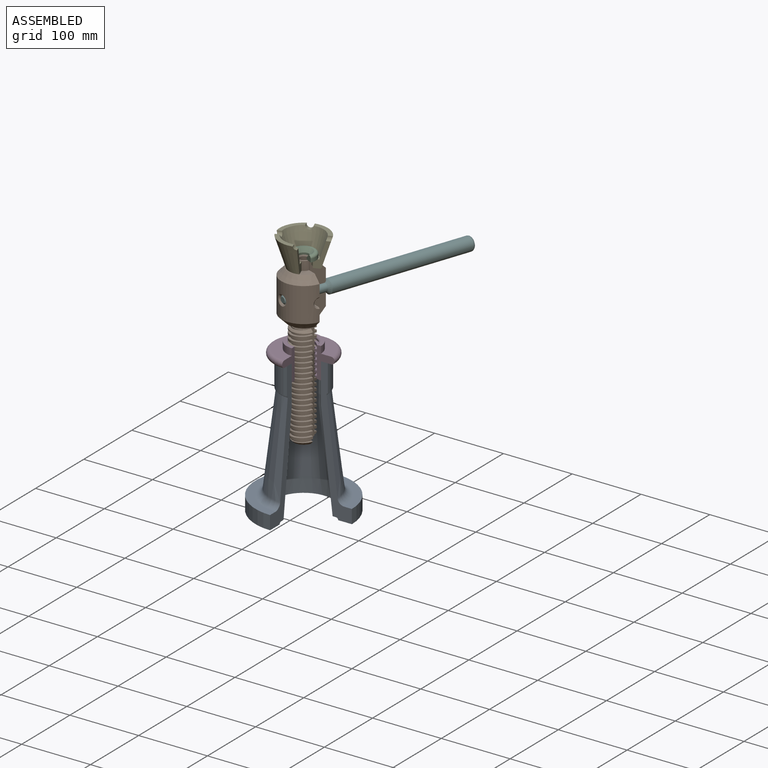
[diagram: assembled view]
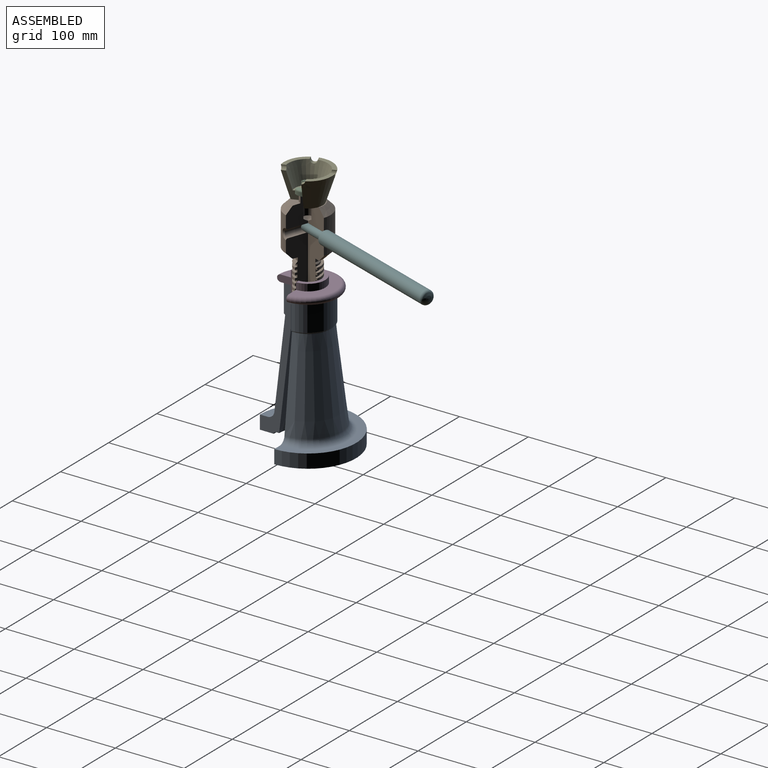
[diagram: assembled view, second angle]
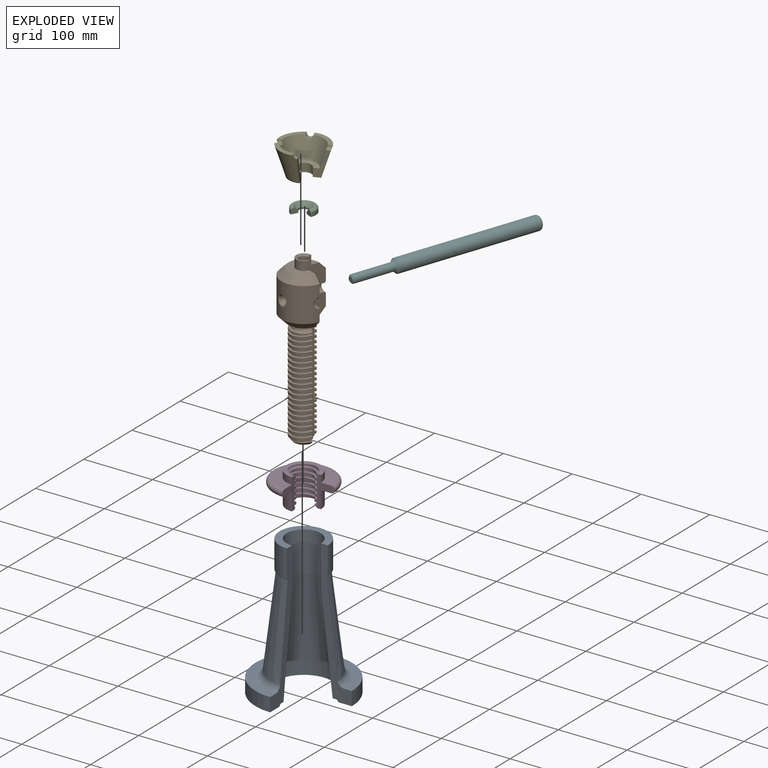
[diagram: exploded view]
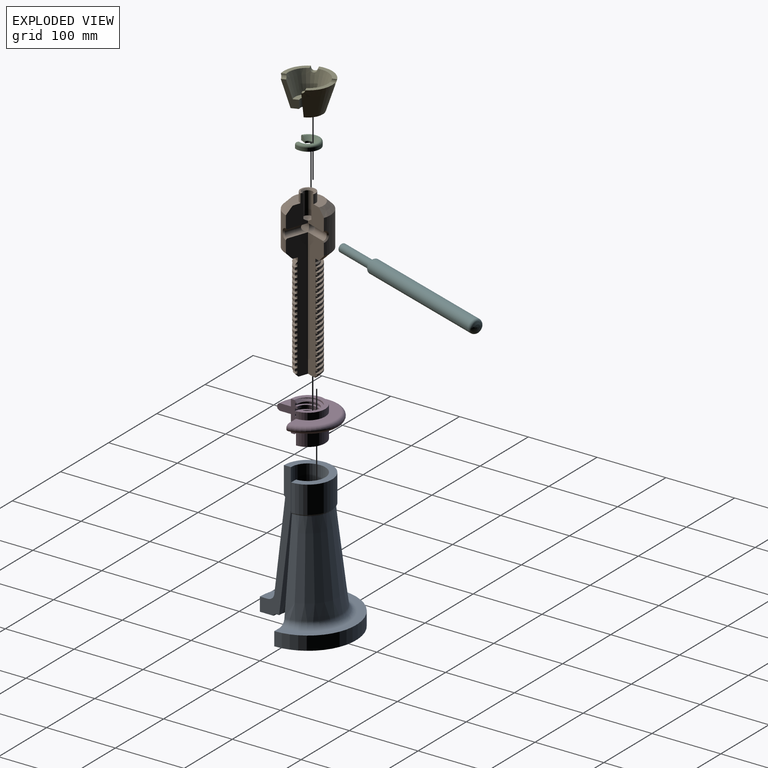
[diagram: exploded view, second angle]
ASSEMBLY  parts=6 mates=5
PART A: 14 faces, bbox 140x140x202 mm
  f0: plane 140x140mm, normal (0,0,-1), area 5654.9mm2, adj f6,f10,f12,f13
  f1: cylinder r=35mm len=70mm, axis (0,0,1), area 6597.3mm2, adj f2,f9,f12,f13
  f2: plane 70x70mm, normal (0,0,1), area 1413.7mm2, adj f1,f3,f12,f13
  f3: cylinder r=25mm len=57.3mm, axis (0,0,1), area 6750.8mm2, adj f2,f4,f12,f13
  f4: cone r=25mm half-angle=6.8deg, axis (0,0,-1), area 22516.7mm2, adj f3,f5,f12,f13
  f5: plane 94x94mm, normal (0,0,-1), area 1055.7mm2, adj f4,f10,f12,f13
  f6: cylinder r=70mm len=140mm, axis (0,0,1), area 6597.3mm2, adj f0,f7,f12,f13
  f7: plane 140x140mm, normal (0,0,1), area 3378.4mm2, adj f6,f11,f12,f13
  f8: cone r=50mm half-angle=6.8deg, axis (0,0,-1), area 25550.1mm2, adj f9,f11,f12,f13
  f9: torus R=35.25mm, axis (0,0,1), area 498.6mm2, adj f1,f8,f12,f13
  f10: torus R=47mm, axis (0,0,1), area 1086.1mm2, adj f0,f5,f12,f13
  f11: torus R=58.87mm, axis (0,0,-1), area 3612.2mm2, adj f7,f8,f12,f13
  f12: plane 202x45mm, normal (1,0,0), area 2385.3mm2, adj f0,f1,f2,f3,f4,f5,f6,f7
  f13: plane 202x45mm, normal (0,-1,0), area 2385.3mm2, adj f0,f1,f2,f3,f4,f5,f6,f7
PART B: 114 faces, bbox 65x65x240 mm
  f0: cylinder r=6mm len=30.84mm, axis (0,-1,0), area 509.3mm2, adj f85,f92,f110,f113
  f1: cylinder r=19mm len=38mm, axis (0,0,-1), area 279mm2, adj f42,f83,f98,f112,f113
  f2: cylinder r=19mm len=38mm, axis (0,0,-1), area 313.4mm2, adj f41,f82,f112,f113
  f3: cylinder r=19mm len=38mm, axis (0,0,-1), area 313.4mm2, adj f40,f81,f112,f113
  f4: cylinder r=19mm len=38mm, axis (0,0,-1), area 313.4mm2, adj f39,f80,f112,f113
  f5: cylinder r=19mm len=38mm, axis (0,0,-1), area 313.4mm2, adj f38,f79,f112,f113
  f6: cylinder r=19mm len=38mm, axis (0,0,-1), area 313.4mm2, adj f37,f78,f112,f113
  f7: cylinder r=19mm len=38mm, axis (0,0,-1), area 313.4mm2, adj f36,f77,f112,f113
  f8: cylinder r=19mm len=38mm, axis (0,0,-1), area 313.4mm2, adj f35,f76,f112,f113
  f9: cylinder r=19mm len=38mm, axis (0,0,-1), area 313.4mm2, adj f34,f75,f112,f113
  f10: cylinder r=19mm len=38mm, axis (0,0,-1), area 313.4mm2, adj f33,f74,f112,f113
  f11: cylinder r=19mm len=38mm, axis (0,0,-1), area 313.4mm2, adj f32,f73,f112,f113
  f12: cylinder r=19mm len=38mm, axis (0,0,-1), area 313.4mm2, adj f31,f72,f112,f113
  f13: cylinder r=19mm len=38mm, axis (0,0,-1), area 313.4mm2, adj f30,f71,f112,f113
  f14: cylinder r=19mm len=38mm, axis (0,0,-1), area 313.4mm2, adj f29,f70,f112,f113
  f15: cylinder r=19mm len=38mm, axis (0,0,-1), area 313.4mm2, adj f28,f69,f112,f113
  f16: cylinder r=19mm len=38mm, axis (0,0,-1), area 313.4mm2, adj f27,f68,f112,f113
  f17: cylinder r=19mm len=38mm, axis (0,0,-1), area 313.4mm2, adj f26,f67,f112,f113
  f18: cylinder r=19mm len=38mm, axis (0,0,-1), area 313.4mm2, adj f25,f66,f112,f113
  f19: cylinder r=19mm len=38mm, axis (0,0,-1), area 313.4mm2, adj f24,f65,f112,f113
  f20: cylinder r=19mm len=38mm, axis (0,0,-1), area 313.4mm2, adj f23,f64,f112,f113
  f21: cone r=14mm half-angle=45deg, axis (0,0,1), area 258.6mm2, adj f63,f84,f95,f112,f113
  f22: bspline ~43.88x38mm, area 284.6mm2, adj f43,f96,f97,f112,f113
  f23: bspline ~43.88x38mm, area 285.1mm2, adj f20,f44,f112,f113
  f24: bspline ~43.88x38mm, area 285.1mm2, adj f19,f45,f112,f113
  f25: bspline ~43.88x38mm, area 285.1mm2, adj f18,f46,f112,f113
  f26: bspline ~43.88x38mm, area 285.1mm2, adj f17,f47,f112,f113
  f27: bspline ~43.88x38mm, area 285.1mm2, adj f16,f48,f112,f113
  f28: bspline ~43.88x38mm, area 285.1mm2, adj f15,f49,f112,f113
  f29: bspline ~43.88x38mm, area 285.1mm2, adj f14,f50,f112,f113
  f30: bspline ~43.88x38mm, area 285.1mm2, adj f13,f51,f112,f113
  f31: bspline ~43.88x38mm, area 285.1mm2, adj f12,f52,f112,f113
  f32: bspline ~43.88x38mm, area 285.1mm2, adj f11,f53,f112,f113
  f33: bspline ~43.88x38mm, area 285.1mm2, adj f10,f54,f112,f113
  f34: bspline ~43.88x38mm, area 285.1mm2, adj f9,f55,f112,f113
  f35: bspline ~43.88x38mm, area 285.1mm2, adj f8,f56,f112,f113
  f36: bspline ~43.88x38mm, area 285.1mm2, adj f7,f57,f112,f113
  f37: bspline ~43.88x38mm, area 285.1mm2, adj f6,f58,f112,f113
  f38: bspline ~43.88x38mm, area 285.1mm2, adj f5,f59,f112,f113
  f39: bspline ~43.88x38mm, area 285.1mm2, adj f4,f60,f112,f113
  f40: bspline ~43.88x38mm, area 285.1mm2, adj f3,f61,f112,f113
  f41: bspline ~43.88x38mm, area 285.1mm2, adj f2,f62,f112,f113
  f42: bspline ~43.88x38mm, area 252.4mm2, adj f1,f63,f98,f112,f113
  f43: cylinder r=15.5mm len=31mm, axis (0,0,-1), area 255.6mm2, adj f22,f64,f112,f113
  f44: cylinder r=15.5mm len=31mm, axis (0,0,-1), area 255.6mm2, adj f23,f65,f112,f113
  f45: cylinder r=15.5mm len=31mm, axis (0,0,-1), area 255.6mm2, adj f24,f66,f112,f113
  f46: cylinder r=15.5mm len=31mm, axis (0,0,-1), area 255.6mm2, adj f25,f67,f112,f113
  f47: cylinder r=15.5mm len=31mm, axis (0,0,-1), area 255.6mm2, adj f26,f68,f112,f113
  f48: cylinder r=15.5mm len=31mm, axis (0,0,-1), area 255.6mm2, adj f27,f69,f112,f113
  f49: cylinder r=15.5mm len=31mm, axis (0,0,-1), area 255.6mm2, adj f28,f70,f112,f113
  f50: cylinder r=15.5mm len=31mm, axis (0,0,-1), area 255.6mm2, adj f29,f71,f112,f113
  f51: cylinder r=15.5mm len=31mm, axis (0,0,-1), area 255.6mm2, adj f30,f72,f112,f113
  f52: cylinder r=15.5mm len=31mm, axis (0,0,-1), area 255.6mm2, adj f31,f73,f112,f113
  f53: cylinder r=15.5mm len=31mm, axis (0,0,-1), area 255.6mm2, adj f32,f74,f112,f113
  f54: cylinder r=15.5mm len=31mm, axis (0,0,-1), area 255.6mm2, adj f33,f75,f112,f113
  f55: cylinder r=15.5mm len=31mm, axis (0,0,-1), area 255.6mm2, adj f34,f76,f112,f113
  f56: cylinder r=15.5mm len=31mm, axis (0,0,-1), area 255.6mm2, adj f35,f77,f112,f113
  f57: cylinder r=15.5mm len=31mm, axis (0,0,-1), area 255.6mm2, adj f36,f78,f112,f113
  f58: cylinder r=15.5mm len=31mm, axis (0,0,-1), area 255.6mm2, adj f37,f79,f112,f113
  f59: cylinder r=15.5mm len=31mm, axis (0,0,-1), area 255.6mm2, adj f38,f80,f112,f113
  f60: cylinder r=15.5mm len=31mm, axis (0,0,-1), area 255.6mm2, adj f39,f81,f112,f113
  f61: cylinder r=15.5mm len=31mm, axis (0,0,-1), area 255.6mm2, adj f40,f82,f112,f113
  f62: cylinder r=15.5mm len=31mm, axis (0,0,-1), area 255.6mm2, adj f41,f83,f112,f113
  f63: cylinder r=15.5mm len=31mm, axis (0,0,-1), area 227.6mm2, adj f21,f42,f84,f112,f113
  f64: bspline ~43.88x38mm, area 285.1mm2, adj f20,f43,f112,f113
  f65: bspline ~43.88x38mm, area 285.1mm2, adj f19,f44,f112,f113
  f66: bspline ~43.88x38mm, area 285.1mm2, adj f18,f45,f112,f113
  f67: bspline ~43.88x38mm, area 285.1mm2, adj f17,f46,f112,f113
  f68: bspline ~43.88x38mm, area 285.1mm2, adj f16,f47,f112,f113
  f69: bspline ~43.88x38mm, area 285.1mm2, adj f15,f48,f112,f113
  f70: bspline ~43.88x38mm, area 285.1mm2, adj f14,f49,f112,f113
  f71: bspline ~43.88x38mm, area 285.1mm2, adj f13,f50,f112,f113
  f72: bspline ~43.88x38mm, area 285.1mm2, adj f12,f51,f112,f113
  f73: bspline ~43.88x38mm, area 285.1mm2, adj f11,f52,f112,f113
  f74: bspline ~43.88x38mm, area 285.1mm2, adj f10,f53,f112,f113
  f75: bspline ~43.88x38mm, area 285.1mm2, adj f9,f54,f112,f113
  f76: bspline ~43.88x38mm, area 285.1mm2, adj f8,f55,f112,f113
  f77: bspline ~43.88x38mm, area 285.1mm2, adj f7,f56,f112,f113
  f78: bspline ~43.88x38mm, area 285.1mm2, adj f6,f57,f112,f113
  f79: bspline ~43.88x38mm, area 285.1mm2, adj f5,f58,f112,f113
  f80: bspline ~43.88x38mm, area 285.1mm2, adj f4,f59,f112,f113
  f81: bspline ~43.88x38mm, area 285.1mm2, adj f3,f60,f112,f113
  f82: bspline ~43.88x38mm, area 285.1mm2, adj f2,f61,f112,f113
  f83: bspline ~43.88x38mm, area 285.1mm2, adj f1,f62,f112,f113
  f84: bspline ~43.88x28.5mm, area 79.1mm2, adj f21,f63,f113
  f85: bspline ~15.32x8.07mm, area 54.4mm2, adj f0,f87,f110,f113
  f86: plane 45x45mm, normal (0,0,-1), area 662.7mm2, adj f94,f108,f112,f113
  f87: cylinder r=32.5mm len=65mm, axis (0,0,-1), area 7070.4mm2, adj f85,f102,f103,f104,f108,f109,f110,f111
  f88: plane 45x45mm, normal (0,0,1), area 907.7mm2, adj f89,f109,f110,f111
  f89: cylinder r=11mm len=22mm, axis (0,0,-1), area 673.9mm2, adj f88,f90,f110,f111
  f90: plane 22x22mm, normal (0,0,1), area 104.7mm2, adj f89,f107,f110,f111
  f91: cylinder r=6mm len=30.84mm, axis (0,-1,0), area 1018.7mm2, adj f92,f93,f103
  f92: cylinder r=6mm len=30.84mm, axis (1,0,0), area 1018.7mm2, adj f0,f91,f104
  f93: cylinder r=6mm len=30.84mm, axis (-1,0,0), area 509.3mm2, adj f91,f102,f111,f112
  f94: cylinder r=15mm len=30mm, axis (0,0,-1), area 353.4mm2, adj f86,f97,f112,f113
  f95: plane 28x28mm, normal (0,0,-1), area 461.8mm2, adj f21,f112,f113
  f96: cylinder r=19mm len=38mm, axis (0,0,-1), area 194.3mm2, adj f22,f97,f101,f112
  f97: cone r=19mm half-angle=45deg, axis (0,0,-1), area 230.2mm2, adj f22,f94,f96,f99,f100,f101,f112,f113
  f98: cone r=14mm half-angle=45deg, axis (0,0,1), area 46.3mm2, adj f1,f42,f112
  f99: bspline ~28.5x21.94mm, area 16.3mm2, adj f97,f100,f112
  f100: cylinder r=15.5mm len=31mm, axis (0,0,-1), area 158.5mm2, adj f97,f99,f101,f112
  f101: bspline ~43.88x38mm, area 174.1mm2, adj f96,f97,f100,f112
  f102: bspline ~15.32x9.13mm, area 54.4mm2, adj f87,f93,f111,f112
  f103: bspline ~16.13x15.3mm, area 108.8mm2, adj f87,f91
  f104: bspline ~16.13x15.3mm, area 108.8mm2, adj f87,f92
  f105: cone r=0mm half-angle=59deg, axis (0,0,1), area 125.2mm2, adj f106,f110,f111
  f106: cylinder r=6.75mm len=33mm, axis (0,0,1), area 1049.7mm2, adj f105,f107,f110,f111
  f107: cone r=6.75mm half-angle=45deg, axis (0,0,1), area 103.3mm2, adj f90,f106,f110,f111
  f108: cone r=22.5mm half-angle=45deg, axis (0,0,1), area 1832.7mm2, adj f86,f87,f112,f113
  f109: cone r=32.5mm half-angle=45deg, axis (0,0,-1), area 1832.7mm2, adj f87,f88,f110,f111
  f110: plane 42x32.5mm, normal (1,0,0), area 782.2mm2, adj f0,f85,f87,f88,f89,f90,f105,f106
  f111: plane 42x32.5mm, normal (0,-1,0), area 782.2mm2, adj f87,f88,f89,f90,f93,f102,f105,f106
  f112: plane 186x32.5mm, normal (0,-1,0), area 3577.2mm2, adj f1,f2,f3,f4,f5,f6,f7,f8
  f113: plane 186x32.5mm, normal (1,0,0), area 3576.4mm2, adj f0,f1,f2,f3,f4,f5,f6,f7
PART C: 8 faces, bbox 37.9x37.9x8 mm
  f0: plane 29x29mm, normal (0,0,1), area 127.2mm2, adj f1,f5,f6,f7
  f1: cone r=7.25mm half-angle=45deg, axis (0,0,1), area 345.5mm2, adj f0,f2,f6,f7
  f2: cylinder r=7.25mm len=14.5mm, axis (0,0,-1), area 94mm2, adj f1,f3,f6,f7
  f3: plane 35x35mm, normal (0,0,-1), area 597.7mm2, adj f2,f4,f6,f7
  f4: cylinder r=17.5mm len=35mm, axis (0,0,-1), area 412.3mm2, adj f3,f5,f6,f7
  f5: torus R=14.5mm, axis (0,0,-1), area 364.4mm2, adj f0,f4,f6,f7
  f6: plane 10.25x8mm, normal (1,0,0), area 66.3mm2, adj f0,f1,f2,f3,f4,f5
  f7: plane 10.25x8mm, normal (0,-1,0), area 66.3mm2, adj f0,f1,f2,f3,f4,f5
PART D: 40 faces, bbox 97.4x97.4x45.5 mm
  f0: cylinder r=15.5mm len=31mm, axis (0,0,1), area 181mm2, adj f6,f17,f24,f38,f39
  f1: cylinder r=15.5mm len=31mm, axis (0,0,1), area 255.6mm2, adj f16,f23,f38,f39
  f2: cylinder r=15.5mm len=31mm, axis (0,0,1), area 255.6mm2, adj f15,f22,f38,f39
  f3: cylinder r=15.5mm len=31mm, axis (0,0,1), area 255.6mm2, adj f14,f21,f38,f39
  f4: cylinder r=15.5mm len=31mm, axis (0,0,1), area 255.6mm2, adj f13,f20,f38,f39
  f5: cylinder r=15.5mm len=31mm, axis (0,0,1), area 171.7mm2, adj f19,f26,f36,f38,f39
  f6: cone r=19.5mm half-angle=45deg, axis (0,0,-1), area 113mm2, adj f0,f24,f39
  f7: cylinder r=19mm len=38mm, axis (0,0,-1), area 221.9mm2, adj f18,f24,f25,f38,f39
  f8: cylinder r=19mm len=38mm, axis (0,0,-1), area 313.4mm2, adj f17,f23,f38,f39
  f9: cylinder r=19mm len=38mm, axis (0,0,-1), area 313.4mm2, adj f16,f22,f38,f39
  f10: cylinder r=19mm len=38mm, axis (0,0,-1), area 313.4mm2, adj f15,f21,f38,f39
  f11: cylinder r=19mm len=38mm, axis (0,0,-1), area 313.4mm2, adj f14,f20,f38,f39
  f12: cylinder r=19mm len=38mm, axis (0,0,-1), area 313.4mm2, adj f13,f19,f38,f39
  f13: bspline ~43.88x38mm, area 285.1mm2, adj f4,f12,f38,f39
  f14: bspline ~43.88x38mm, area 285.1mm2, adj f3,f11,f38,f39
  f15: bspline ~43.88x38mm, area 285.1mm2, adj f2,f10,f38,f39
  f16: bspline ~43.88x38mm, area 285.1mm2, adj f1,f9,f38,f39
  f17: bspline ~43.88x38mm, area 285.1mm2, adj f0,f8,f38,f39
  f18: bspline ~38.39x28.5mm, area 32.4mm2, adj f7,f25,f38
  f19: bspline ~43.88x38mm, area 285.1mm2, adj f5,f12,f38,f39
  f20: bspline ~43.88x38mm, area 285.1mm2, adj f4,f11,f38,f39
  f21: bspline ~43.88x38mm, area 285.1mm2, adj f3,f10,f38,f39
  f22: bspline ~43.88x38mm, area 285.1mm2, adj f2,f9,f38,f39
  f23: bspline ~43.88x38mm, area 285.1mm2, adj f1,f8,f38,f39
  f24: bspline ~43.88x38mm, area 205mm2, adj f0,f6,f7,f38,f39
  f25: cone r=19.5mm half-angle=45deg, axis (0,0,-1), area 109.5mm2, adj f7,f18,f28,f38,f39
  f26: cone r=15.5mm half-angle=45deg, axis (0,0,1), area 240.3mm2, adj f5,f27,f35,f36,f37,f38,f39
  f27: plane 50x50mm, normal (0,0,1), area 576.7mm2, adj f26,f33,f38,f39
  f28: plane 50x50mm, normal (0,0,-1), area 576.7mm2, adj f25,f29,f38,f39
  f29: cylinder r=25mm len=50mm, axis (0,0,1), area 2945.2mm2, adj f28,f30,f38,f39
  f30: plane 80x80mm, normal (0,0,-1), area 2297.3mm2, adj f29,f31,f38,f39
  f31: torus R=40mm, axis (0,0,1), area 3196.5mm2, adj f30,f32,f38,f39
  f32: plane 80x80mm, normal (0,0,1), area 2297.3mm2, adj f31,f33,f38,f39
  f33: cylinder r=25mm len=50mm, axis (0,0,1), area 1178.1mm2, adj f27,f32,f38,f39
  f34: cylinder r=19mm len=38mm, axis (0,0,-1), area 194.3mm2, adj f35,f36,f37,f39
  f35: cone r=19mm half-angle=45deg, axis (0,0,-1), area 11.6mm2, adj f26,f34,f36,f37
  f36: bspline ~43.88x38mm, area 194.4mm2, adj f5,f26,f34,f35,f39
  f37: bspline ~38.39x28.5mm, area 25.9mm2, adj f26,f34,f35,f39
  f38: plane 45x29.5mm, normal (1,0,0), area 528.4mm2, adj f0,f1,f2,f3,f4,f5,f7,f8
  f39: plane 45x29.5mm, normal (0,-1,0), area 528.7mm2, adj f0,f1,f2,f3,f4,f5,f6,f7
PART E: 14 faces, bbox 70x70x42 mm
  f0: cylinder r=5mm len=7.56mm, axis (0,1,0), area 49.9mm2, adj f1,f5,f7,f13
  f1: plane 29.64x29.64mm, normal (0,0,1), area 252.1mm2, adj f0,f5,f7,f10
  f2: plane 29.64x29.64mm, normal (0,0,1), area 252.1mm2, adj f5,f7,f9,f10
  f3: cylinder r=11mm len=22mm, axis (0,0,-1), area 622mm2, adj f4,f8,f12,f13
  f4: plane 42.86x42.86mm, normal (0,0,-1), area 796.7mm2, adj f3,f5,f12,f13
  f5: cone r=35mm half-angle=17.9deg, axis (0,0,1), area 5744.3mm2, adj f0,f1,f2,f4,f6,f9,f10,f11
  f6: plane 29.64x29.64mm, normal (0,0,1), area 252.1mm2, adj f5,f7,f9,f11
  f7: cone r=19mm half-angle=17.9deg, axis (0,0,1), area 3418.6mm2, adj f0,f1,f2,f6,f8,f9,f10,f11
  f8: plane 38x38mm, normal (0,0,1), area 565.5mm2, adj f3,f7,f12,f13
  f9: cylinder r=5mm len=10mm, axis (0,-1,0), area 99.7mm2, adj f2,f5,f6,f7
  f10: cylinder r=5mm len=10mm, axis (1,0,0), area 99.7mm2, adj f1,f2,f5,f7
  f11: cylinder r=5mm len=7.56mm, axis (-1,0,0), area 49.9mm2, adj f5,f6,f7,f12
  f12: plane 37x22.38mm, normal (0,-1,0), area 306mm2, adj f3,f4,f5,f7,f8,f11
  f13: plane 37x22.38mm, normal (1,0,0), area 306mm2, adj f0,f3,f4,f5,f7,f8
PART F: 7 faces, bbox 277.7x21.6x21.6 mm
  f0: cylinder r=10mm len=206.51mm, axis (-1,0,0), area 12975.5mm2, adj f1,f6
  f1: cone r=10mm half-angle=45deg, axis (1,0,0), area 284.3mm2, adj f0,f2
  f2: cylinder r=6mm len=60mm, axis (-1,0,0), area 2261.9mm2, adj f1,f5
  f3: plane 8x8mm, normal (-1,0,0), area 50.3mm2, adj f5
  f4: sphere r=20mm, area 183.4mm2, adj f6
  f5: cone r=4mm half-angle=45deg, axis (1,0,0), area 88.9mm2, adj f2,f3
  f6: torus R=6mm, axis (-1,0,0), area 272.1mm2, adj f0,f4
PLACE A at identity fixed
PLACE B rot(axis=(0,0,1),70.7deg) t=(0,0,19.01)mm
PLACE C rot(axis=(0,0,-1),27.1deg) t=(0,0,19.01)mm
PLACE D at identity
PLACE E rot(axis=(0,0,1),21deg) t=(0,0,19.01)mm
PLACE F rot(axis=(0.62,0.44,0.64),95.5deg) t=(-243.98,52.85,189.44)mm
MATE cylindrical B.f1 <-> D.f0  axis (0,0,-1) through (0,0,237.72)mm
MATE revolute E.f3 <-> B.f1  axis (0,0,-1) through (0,0,319.24)mm
MATE cylindrical F.f0 <-> B.f92  axis (-0.33,-0.94,0) through (10.28,29.27,284.24)mm
MATE fastened D.f0 <-> A.f1  axis (0,0,1) through (0,0,202)mm
MATE revolute C.f1 <-> B.f1  axis (0,0,-1) through (0,0,332.24)mm
